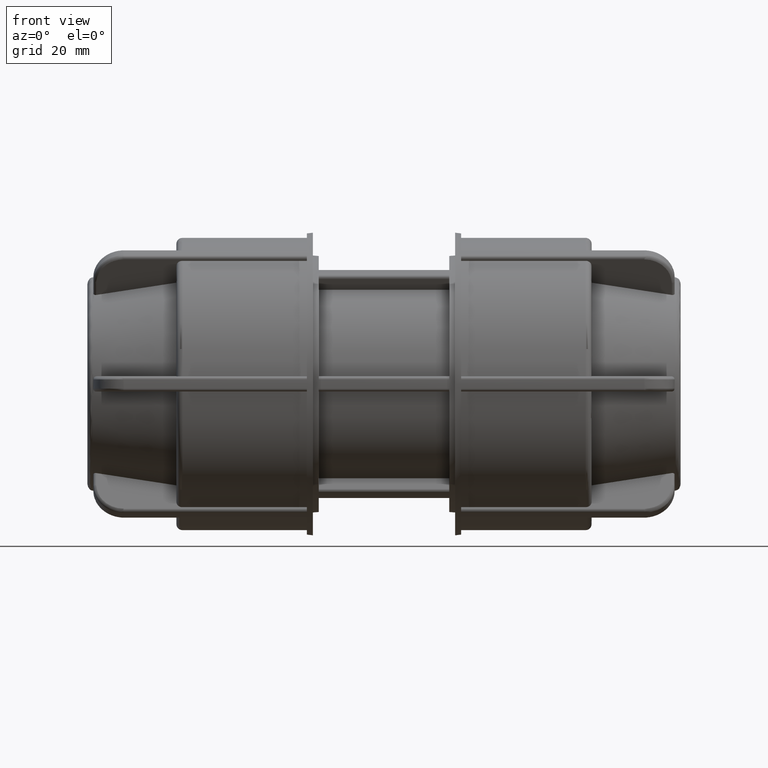
[diagram: clean part render]
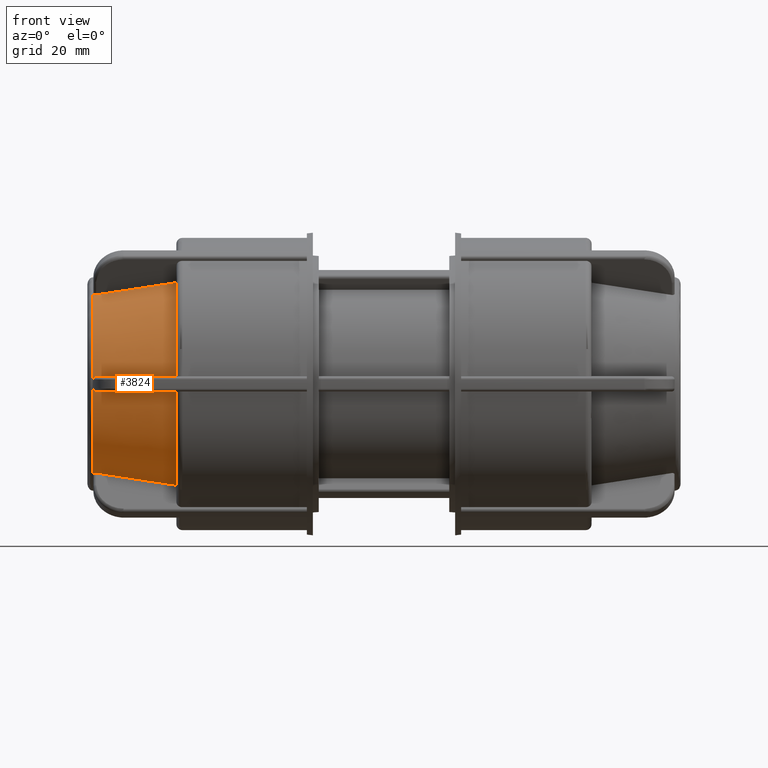
[diagram: same view with one face highlighted and labeled with its STEP entity id]
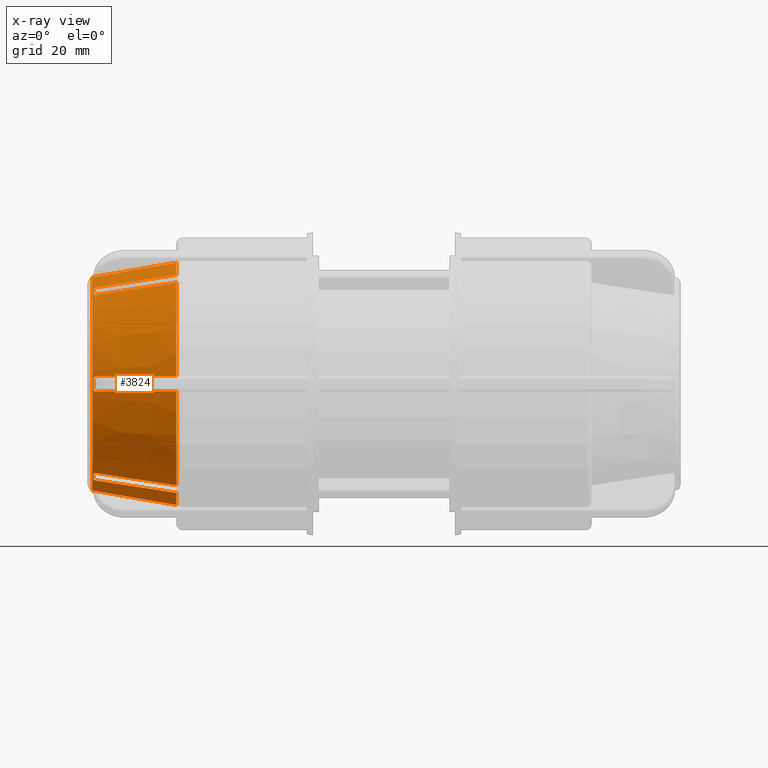
[diagram: x-ray of the same camera — body ghosted, the highlighted face saturated]
A machine part, front view. The second image highlights one B-rep face of the part: STEP entity #3824.
The next image is the same camera in x-ray: the body ghosted, the highlighted face saturated — about 0% of this face is hidden behind the body in this view.
In plain terms, the highlighted conical surface has half-angle 10 deg.
Its self-contained STEP definition (entity closure, byte-faithful):
#15=CONICAL_SURFACE('',#4187,18.7960033082072,10.);
#43=(
BOUNDED_CURVE()
B_SPLINE_CURVE(2,(#5802,#5803,#5804),.UNSPECIFIED.,.F.,.F.)
B_SPLINE_CURVE_WITH_KNOTS((3,3),(0.0540233314813296,1.39325814723339),
 .UNSPECIFIED.)
CURVE()
GEOMETRIC_REPRESENTATION_ITEM()
RATIONAL_B_SPLINE_CURVE((1.00015410123566,1.00198713033975,1.))
REPRESENTATION_ITEM('')
);
#44=(
BOUNDED_CURVE()
B_SPLINE_CURVE(2,(#6011,#6012,#6013),.UNSPECIFIED.,.F.,.F.)
B_SPLINE_CURVE_WITH_KNOTS((3,3),(0.054023332822121,1.39325814723339),
 .UNSPECIFIED.)
CURVE()
GEOMETRIC_REPRESENTATION_ITEM()
RATIONAL_B_SPLINE_CURVE((1.00015410150242,1.00198713373033,1.))
REPRESENTATION_ITEM('')
);
#45=(
BOUNDED_CURVE()
B_SPLINE_CURVE(2,(#6172,#6173,#6174),.UNSPECIFIED.,.F.,.F.)
B_SPLINE_CURVE_WITH_KNOTS((3,3),(0.0540233315500075,1.39325814723339),
 .UNSPECIFIED.)
CURVE()
GEOMETRIC_REPRESENTATION_ITEM()
RATIONAL_B_SPLINE_CURVE((1.00015410124615,1.00198713047243,1.))
REPRESENTATION_ITEM('')
);
#46=(
BOUNDED_CURVE()
B_SPLINE_CURVE(2,(#6333,#6334,#6335),.UNSPECIFIED.,.F.,.F.)
B_SPLINE_CURVE_WITH_KNOTS((3,3),(0.0540233327986817,1.39325814723339),
 .UNSPECIFIED.)
CURVE()
GEOMETRIC_REPRESENTATION_ITEM()
RATIONAL_B_SPLINE_CURVE((1.0001541014949,1.00198713363416,1.))
REPRESENTATION_ITEM('')
);
#47=(
BOUNDED_CURVE()
B_SPLINE_CURVE(2,(#6494,#6495,#6496),.UNSPECIFIED.,.F.,.F.)
B_SPLINE_CURVE_WITH_KNOTS((3,3),(0.0540233314578712,1.39325814723339),
 .UNSPECIFIED.)
CURVE()
GEOMETRIC_REPRESENTATION_ITEM()
RATIONAL_B_SPLINE_CURVE((1.00015410122812,1.00198713024338,1.))
REPRESENTATION_ITEM('')
);
#48=(
BOUNDED_CURVE()
B_SPLINE_CURVE(2,(#6571,#6572,#6573),.UNSPECIFIED.,.F.,.F.)
B_SPLINE_CURVE_WITH_KNOTS((3,3),(0.,1.33923481576427),.UNSPECIFIED.)
CURVE()
GEOMETRIC_REPRESENTATION_ITEM()
RATIONAL_B_SPLINE_CURVE((1.,1.00198713030067,1.00015410123259))
REPRESENTATION_ITEM('')
);
#49=(
BOUNDED_CURVE()
B_SPLINE_CURVE(2,(#6592,#6593,#6594),.UNSPECIFIED.,.F.,.F.)
B_SPLINE_CURVE_WITH_KNOTS((3,3),(0.,1.33923481580581),.UNSPECIFIED.)
CURVE()
GEOMETRIC_REPRESENTATION_ITEM()
RATIONAL_B_SPLINE_CURVE((1.,1.00198713016049,1.00015410122161))
REPRESENTATION_ITEM('')
);
#50=(
BOUNDED_CURVE()
B_SPLINE_CURVE(2,(#6613,#6614,#6615),.UNSPECIFIED.,.F.,.F.)
B_SPLINE_CURVE_WITH_KNOTS((3,3),(0.,1.33923481583448),.UNSPECIFIED.)
CURVE()
GEOMETRIC_REPRESENTATION_ITEM()
RATIONAL_B_SPLINE_CURVE((1.,1.00198713004817,1.00015410121281))
REPRESENTATION_ITEM('')
);
#51=(
BOUNDED_CURVE()
B_SPLINE_CURVE(2,(#6634,#6635,#6636),.UNSPECIFIED.,.F.,.F.)
B_SPLINE_CURVE_WITH_KNOTS((3,3),(0.,1.33923481467794),.UNSPECIFIED.)
CURVE()
GEOMETRIC_REPRESENTATION_ITEM()
RATIONAL_B_SPLINE_CURVE((1.,1.00198713304561,1.00015410144856))
REPRESENTATION_ITEM('')
);
#52=(
BOUNDED_CURVE()
B_SPLINE_CURVE(2,(#6655,#6656,#6657),.UNSPECIFIED.,.F.,.F.)
B_SPLINE_CURVE_WITH_KNOTS((3,3),(0.,1.33923481556404),.UNSPECIFIED.)
CURVE()
GEOMETRIC_REPRESENTATION_ITEM()
RATIONAL_B_SPLINE_CURVE((1.,1.0019871307598,1.00015410126877))
REPRESENTATION_ITEM('')
);
#53=(
BOUNDED_CURVE()
B_SPLINE_CURVE(2,(#6832,#6833,#6834),.UNSPECIFIED.,.F.,.F.)
B_SPLINE_CURVE_WITH_KNOTS((3,3),(0.0540233315486795,1.39325814723339),
 .UNSPECIFIED.)
CURVE()
GEOMETRIC_REPRESENTATION_ITEM()
RATIONAL_B_SPLINE_CURVE((1.00015410124742,1.00198713048896,1.))
REPRESENTATION_ITEM('')
);
#54=(
BOUNDED_CURVE()
B_SPLINE_CURVE(2,(#6906,#6907,#6908),.UNSPECIFIED.,.F.,.F.)
B_SPLINE_CURVE_WITH_KNOTS((3,3),(0.,1.33923481568245),.UNSPECIFIED.)
CURVE()
GEOMETRIC_REPRESENTATION_ITEM()
RATIONAL_B_SPLINE_CURVE((1.,1.00198713044212,1.0001541012438))
REPRESENTATION_ITEM('')
);
#69=B_SPLINE_CURVE_WITH_KNOTS('',3,(#5770,#5771,#5772,#5773,#5774,#5775,
#5776,#5777,#5778,#5779,#5780,#5781),.UNSPECIFIED.,.F.,.F.,(4,2,2,2,2,4),
(0.0761460251854452,0.0945144772238501,0.113255071626229,0.132253936853423,
0.151252802080618,0.151881477474885),.UNSPECIFIED.);
#73=B_SPLINE_CURVE_WITH_KNOTS('',3,(#5862,#5863,#5864,#5865,#5866,#5867,
#5868,#5869,#5870,#5871,#5872,#5873),.UNSPECIFIED.,.F.,.F.,(4,2,2,2,2,4),
(0.151952109715845,0.152580785110112,0.171579650337306,0.190578515564501,
0.20931910996688,0.227687562005285),.UNSPECIFIED.);
#76=B_SPLINE_CURVE_WITH_KNOTS('',3,(#5979,#5980,#5981,#5982,#5983,#5984,
#5985,#5986,#5987,#5988,#5989,#5990),.UNSPECIFIED.,.F.,.F.,(4,2,2,2,2,4),
(0.0761460251854459,0.0945144772238505,0.113255071626229,0.132253936853424,
0.151252802080619,0.151881477474897),.UNSPECIFIED.);
#80=B_SPLINE_CURVE_WITH_KNOTS('',3,(#6068,#6069,#6070,#6071,#6072,#6073,
#6074,#6075,#6076,#6077,#6078,#6079),.UNSPECIFIED.,.F.,.F.,(4,2,2,2,2,4),
(0.151952109715844,0.152580785110112,0.171579650337307,0.190578515564502,
0.20931910996688,0.227687562005285),.UNSPECIFIED.);
#83=B_SPLINE_CURVE_WITH_KNOTS('',3,(#6140,#6141,#6142,#6143,#6144,#6145,
#6146,#6147,#6148,#6149,#6150,#6151),.UNSPECIFIED.,.F.,.F.,(4,2,2,2,2,4),
(0.0761460251854453,0.09451447722385,0.113255071626229,0.132253936853423,
0.151252802080618,0.151881477474886),.UNSPECIFIED.);
#87=B_SPLINE_CURVE_WITH_KNOTS('',3,(#6229,#6230,#6231,#6232,#6233,#6234,
#6235,#6236,#6237,#6238,#6239,#6240),.UNSPECIFIED.,.F.,.F.,(4,2,2,2,2,4),
(0.151952109715835,0.152580785110112,0.171579650337307,0.190578515564502,
0.20931910996688,0.227687562005285),.UNSPECIFIED.);
#90=B_SPLINE_CURVE_WITH_KNOTS('',3,(#6301,#6302,#6303,#6304,#6305,#6306,
#6307,#6308,#6309,#6310,#6311,#6312),.UNSPECIFIED.,.F.,.F.,(4,2,2,2,2,4),
(0.0761460251854457,0.0945144772238506,0.113255071626229,0.132253936853424,
0.151252802080618,0.151881477474896),.UNSPECIFIED.);
#94=B_SPLINE_CURVE_WITH_KNOTS('',3,(#6390,#6391,#6392,#6393,#6394,#6395,
#6396,#6397,#6398,#6399,#6400,#6401),.UNSPECIFIED.,.F.,.F.,(4,2,2,2,2,4),
(0.151952109715844,0.152580785110111,0.171579650337306,0.1905785155645,
0.209319109966879,0.227687562005284),.UNSPECIFIED.);
#97=B_SPLINE_CURVE_WITH_KNOTS('',3,(#6462,#6463,#6464,#6465,#6466,#6467,
#6468,#6469,#6470,#6471,#6472,#6473),.UNSPECIFIED.,.F.,.F.,(4,2,2,2,2,4),
(0.0761460251854454,0.0945144772238501,0.113255071626229,0.132253936853424,
0.151252802080618,0.151881477474885),.UNSPECIFIED.);
#101=B_SPLINE_CURVE_WITH_KNOTS('',3,(#6551,#6552,#6553,#6554,#6555,#6556,
#6557,#6558,#6559,#6560,#6561,#6562),.UNSPECIFIED.,.F.,.F.,(4,2,2,2,2,4),
(0.151952109715844,0.152580785110112,0.171579650337306,0.190578515564501,
0.20931910996688,0.227687562005284),.UNSPECIFIED.);
#111=B_SPLINE_CURVE_WITH_KNOTS('',3,(#6817,#6818,#6819,#6820,#6821,#6822,
#6823,#6824,#6825,#6826,#6827,#6828),.UNSPECIFIED.,.F.,.F.,(4,2,2,2,2,4),
(0.0761460251854453,0.09451447722385,0.113255071626229,0.132253936853423,
0.151252802080618,0.151881477474886),.UNSPECIFIED.);
#114=B_SPLINE_CURVE_WITH_KNOTS('',3,(#6887,#6888,#6889,#6890,#6891,#6892,
#6893,#6894,#6895,#6896,#6897,#6898),.UNSPECIFIED.,.F.,.F.,(4,2,2,2,2,4),
(0.151952109715844,0.152580785110112,0.171579650337307,0.190578515564502,
0.20931910996688,0.227687562005285),.UNSPECIFIED.);
#203=FACE_BOUND('',#685,.T.);
#438=FACE_OUTER_BOUND('',#684,.T.);
#684=EDGE_LOOP('',(#3080,#3081,#3082,#3083,#3084,#3085,#3086,#3087,#3088,
#3089,#3090,#3091,#3092,#3093,#3094,#3095,#3096,#3097,#3098,#3099,#3100,
#3101,#3102,#3103,#3104,#3105,#3106,#3107,#3108,#3109,#3110,#3111,#3112,
#3113,#3114,#3115));
#685=EDGE_LOOP('',(#3116));
#1308=CIRCLE('',#4034,17.6728004410943);
#1329=CIRCLE('',#4063,17.6728004410943);
#1337=CIRCLE('',#4078,17.6728004410943);
#1345=CIRCLE('',#4093,17.6728004410943);
#1353=CIRCLE('',#4108,17.6728004410943);
#1356=CIRCLE('',#4118,20.0920066164144);
#1358=CIRCLE('',#4121,20.0920066164144);
#1360=CIRCLE('',#4124,20.0920066164144);
#1362=CIRCLE('',#4127,20.0920066164144);
#1363=CIRCLE('',#4129,20.0920066164144);
#1366=CIRCLE('',#4133,20.0920066164144);
#1386=CIRCLE('',#4180,17.6728004410943);
#1389=CIRCLE('',#4186,17.6457081218349);
#1567=VERTEX_POINT('',#5768);
#1568=VERTEX_POINT('',#5769);
#1572=VERTEX_POINT('',#5800);
#1579=VERTEX_POINT('',#5860);
#1580=VERTEX_POINT('',#5861);
#1606=VERTEX_POINT('',#5977);
#1607=VERTEX_POINT('',#5978);
#1611=VERTEX_POINT('',#6009);
#1616=VERTEX_POINT('',#6066);
#1617=VERTEX_POINT('',#6067);
#1622=VERTEX_POINT('',#6138);
#1623=VERTEX_POINT('',#6139);
#1627=VERTEX_POINT('',#6170);
#1632=VERTEX_POINT('',#6227);
#1633=VERTEX_POINT('',#6228);
#1638=VERTEX_POINT('',#6299);
#1639=VERTEX_POINT('',#6300);
#1643=VERTEX_POINT('',#6331);
#1648=VERTEX_POINT('',#6388);
#1649=VERTEX_POINT('',#6389);
#1654=VERTEX_POINT('',#6460);
#1655=VERTEX_POINT('',#6461);
#1659=VERTEX_POINT('',#6492);
#1664=VERTEX_POINT('',#6549);
#1665=VERTEX_POINT('',#6550);
#1666=VERTEX_POINT('',#6570);
#1670=VERTEX_POINT('',#6591);
#1674=VERTEX_POINT('',#6612);
#1678=VERTEX_POINT('',#6633);
#1682=VERTEX_POINT('',#6654);
#1687=VERTEX_POINT('',#6677);
#1688=VERTEX_POINT('',#6690);
#1700=VERTEX_POINT('',#6815);
#1701=VERTEX_POINT('',#6816);
#1705=VERTEX_POINT('',#6885);
#1706=VERTEX_POINT('',#6886);
#1708=VERTEX_POINT('',#6912);
#1981=EDGE_CURVE('',#1567,#1568,#69,.F.);
#1988=EDGE_CURVE('',#1567,#1572,#43,.T.);
#1996=EDGE_CURVE('',#1579,#1580,#73,.F.);
#1999=EDGE_CURVE('',#1579,#1568,#1308,.T.);
#2030=EDGE_CURVE('',#1606,#1607,#76,.F.);
#2037=EDGE_CURVE('',#1606,#1611,#44,.T.);
#2044=EDGE_CURVE('',#1616,#1617,#80,.F.);
#2047=EDGE_CURVE('',#1616,#1607,#1329,.T.);
#2055=EDGE_CURVE('',#1622,#1623,#83,.F.);
#2062=EDGE_CURVE('',#1622,#1627,#45,.T.);
#2069=EDGE_CURVE('',#1632,#1633,#87,.F.);
#2072=EDGE_CURVE('',#1632,#1623,#1337,.T.);
#2080=EDGE_CURVE('',#1638,#1639,#90,.F.);
#2087=EDGE_CURVE('',#1638,#1643,#46,.T.);
#2094=EDGE_CURVE('',#1648,#1649,#94,.F.);
#2097=EDGE_CURVE('',#1648,#1639,#1345,.T.);
#2105=EDGE_CURVE('',#1654,#1655,#97,.F.);
#2112=EDGE_CURVE('',#1654,#1659,#47,.T.);
#2119=EDGE_CURVE('',#1664,#1665,#101,.F.);
#2122=EDGE_CURVE('',#1664,#1655,#1353,.T.);
#2124=EDGE_CURVE('',#1666,#1665,#48,.T.);
#2129=EDGE_CURVE('',#1670,#1580,#49,.T.);
#2134=EDGE_CURVE('',#1674,#1617,#50,.T.);
#2139=EDGE_CURVE('',#1678,#1633,#51,.T.);
#2144=EDGE_CURVE('',#1682,#1649,#52,.T.);
#2151=EDGE_CURVE('',#1687,#1659,#1356,.T.);
#2153=EDGE_CURVE('',#1666,#1643,#1358,.T.);
#2155=EDGE_CURVE('',#1682,#1627,#1360,.T.);
#2157=EDGE_CURVE('',#1678,#1611,#1362,.T.);
#2158=EDGE_CURVE('',#1670,#1688,#1363,.T.);
#2162=EDGE_CURVE('',#1674,#1572,#1366,.T.);
#2189=EDGE_CURVE('',#1700,#1701,#111,.F.);
#2192=EDGE_CURVE('',#1700,#1688,#53,.T.);
#2198=EDGE_CURVE('',#1705,#1706,#114,.F.);
#2201=EDGE_CURVE('',#1705,#1701,#1386,.T.);
#2203=EDGE_CURVE('',#1687,#1706,#54,.T.);
#2205=EDGE_CURVE('',#1708,#1708,#1389,.T.);
#3080=ORIENTED_EDGE('',*,*,#1988,.T.);
#3081=ORIENTED_EDGE('',*,*,#2162,.F.);
#3082=ORIENTED_EDGE('',*,*,#2134,.T.);
#3083=ORIENTED_EDGE('',*,*,#2044,.F.);
#3084=ORIENTED_EDGE('',*,*,#2047,.T.);
#3085=ORIENTED_EDGE('',*,*,#2030,.F.);
#3086=ORIENTED_EDGE('',*,*,#2037,.T.);
#3087=ORIENTED_EDGE('',*,*,#2157,.F.);
#3088=ORIENTED_EDGE('',*,*,#2139,.T.);
#3089=ORIENTED_EDGE('',*,*,#2069,.F.);
#3090=ORIENTED_EDGE('',*,*,#2072,.T.);
#3091=ORIENTED_EDGE('',*,*,#2055,.F.);
#3092=ORIENTED_EDGE('',*,*,#2062,.T.);
#3093=ORIENTED_EDGE('',*,*,#2155,.F.);
#3094=ORIENTED_EDGE('',*,*,#2144,.T.);
#3095=ORIENTED_EDGE('',*,*,#2094,.F.);
#3096=ORIENTED_EDGE('',*,*,#2097,.T.);
#3097=ORIENTED_EDGE('',*,*,#2080,.F.);
#3098=ORIENTED_EDGE('',*,*,#2087,.T.);
#3099=ORIENTED_EDGE('',*,*,#2153,.F.);
#3100=ORIENTED_EDGE('',*,*,#2124,.T.);
#3101=ORIENTED_EDGE('',*,*,#2119,.F.);
#3102=ORIENTED_EDGE('',*,*,#2122,.T.);
#3103=ORIENTED_EDGE('',*,*,#2105,.F.);
#3104=ORIENTED_EDGE('',*,*,#2112,.T.);
#3105=ORIENTED_EDGE('',*,*,#2151,.F.);
#3106=ORIENTED_EDGE('',*,*,#2203,.T.);
#3107=ORIENTED_EDGE('',*,*,#2198,.F.);
#3108=ORIENTED_EDGE('',*,*,#2201,.T.);
#3109=ORIENTED_EDGE('',*,*,#2189,.F.);
#3110=ORIENTED_EDGE('',*,*,#2192,.T.);
#3111=ORIENTED_EDGE('',*,*,#2158,.F.);
#3112=ORIENTED_EDGE('',*,*,#2129,.T.);
#3113=ORIENTED_EDGE('',*,*,#1996,.F.);
#3114=ORIENTED_EDGE('',*,*,#1999,.T.);
#3115=ORIENTED_EDGE('',*,*,#1981,.F.);
#3116=ORIENTED_EDGE('',*,*,#2205,.F.);
#3824=ADVANCED_FACE('',(#438,#203),#15,.T.);
#4034=AXIS2_PLACEMENT_3D('',#5877,#4658,#4659);
#4063=AXIS2_PLACEMENT_3D('',#6083,#4735,#4736);
#4078=AXIS2_PLACEMENT_3D('',#6244,#4774,#4775);
#4093=AXIS2_PLACEMENT_3D('',#6405,#4813,#4814);
#4108=AXIS2_PLACEMENT_3D('',#6566,#4852,#4853);
#4118=AXIS2_PLACEMENT_3D('',#6679,#4888,#4889);
#4121=AXIS2_PLACEMENT_3D('',#6682,#4894,#4895);
#4124=AXIS2_PLACEMENT_3D('',#6685,#4900,#4901);
#4127=AXIS2_PLACEMENT_3D('',#6688,#4906,#4907);
#4129=AXIS2_PLACEMENT_3D('',#6691,#4910,#4911);
#4133=AXIS2_PLACEMENT_3D('',#6697,#4919,#4920);
#4180=AXIS2_PLACEMENT_3D('',#6902,#5023,#5024);
#4186=AXIS2_PLACEMENT_3D('',#6913,#5035,#5036);
#4187=AXIS2_PLACEMENT_3D('',#6914,#5037,#5038);
#4658=DIRECTION('center_axis',(-1.,-1.7943457982662E-16,2.19497810467973E-16));
#4659=DIRECTION('ref_axis',(-5.27074598664029E-17,1.,0.));
#4735=DIRECTION('center_axis',(-1.,7.40196600938148E-17,2.19497810467973E-16));
#4736=DIRECTION('ref_axis',(-5.27074598664029E-17,1.,0.));
#4774=DIRECTION('center_axis',(-1.,2.00746780054032E-16,-1.4791141972894E-31));
#4775=DIRECTION('ref_axis',(-5.27074598664029E-17,1.,0.));
#4813=DIRECTION('center_axis',(-1.,7.40196600938147E-17,-2.19497810467973E-16));
#4814=DIRECTION('ref_axis',(-5.27074598664029E-17,1.,0.));
#4852=DIRECTION('center_axis',(-1.,-1.79434579826621E-16,-2.19497810467973E-16));
#4853=DIRECTION('ref_axis',(-5.27074598664029E-17,1.,0.));
#4888=DIRECTION('center_axis',(1.,3.06161699786838E-16,0.));
#4889=DIRECTION('ref_axis',(0.,0.,-1.));
#4894=DIRECTION('center_axis',(1.,3.06161699786838E-16,0.));
#4895=DIRECTION('ref_axis',(0.,0.,-1.));
#4900=DIRECTION('center_axis',(1.,3.06161699786838E-16,0.));
#4901=DIRECTION('ref_axis',(0.,0.,-1.));
#4906=DIRECTION('center_axis',(1.,3.06161699786838E-16,0.));
#4907=DIRECTION('ref_axis',(0.,0.,-1.));
#4910=DIRECTION('center_axis',(1.,3.06161699786838E-16,0.));
#4911=DIRECTION('ref_axis',(0.,0.,-1.));
#4919=DIRECTION('center_axis',(1.,3.06161699786838E-16,0.));
#4920=DIRECTION('ref_axis',(0.,0.,-1.));
#5023=DIRECTION('center_axis',(-1.,-3.06161699786838E-16,0.));
#5024=DIRECTION('ref_axis',(-5.27074598664029E-17,1.,0.));
#5035=DIRECTION('center_axis',(-1.,-5.03339629992568E-16,2.66200764082701E-32));
#5036=DIRECTION('ref_axis',(5.03339629992568E-16,-1.,3.06161699786838E-17));
#5037=DIRECTION('center_axis',(1.,3.06161699786838E-16,0.));
#5038=DIRECTION('ref_axis',(-5.27074598664029E-17,1.,0.));
#5768=CARTESIAN_POINT('',(-47.52,7.77592945157103,-15.9683048861923));
#5769=CARTESIAN_POINT('',(-48.02,8.1789204388094,-15.6663057510815));
#5770=CARTESIAN_POINT('Ctrl Pts',(-48.02,8.1789204388094,-15.6663057510815));
#5771=CARTESIAN_POINT('Ctrl Pts',(-48.02,8.12450236308849,-15.6947158382345));
#5772=CARTESIAN_POINT('Ctrl Pts',(-48.0080460852219,8.06744823452855,-15.7264832756318));
#5773=CARTESIAN_POINT('Ctrl Pts',(-47.9589694054206,7.96309200606991,-15.7892775950758));
#5774=CARTESIAN_POINT('Ctrl Pts',(-47.9213143433133,7.91602198748322,-15.8202962165603));
#5775=CARTESIAN_POINT('Ctrl Pts',(-47.8337192393451,7.8432441673508,-15.8737347183183));
#5776=CARTESIAN_POINT('Ctrl Pts',(-47.777761870359,7.81295494224818,-15.8996165545276));
#5777=CARTESIAN_POINT('Ctrl Pts',(-47.6551849267657,7.77663340102511,-15.9414649404214));
#5778=CARTESIAN_POINT('Ctrl Pts',(-47.5885720097734,7.77060117018284,-15.9574510622028));
#5779=CARTESIAN_POINT('Ctrl Pts',(-47.5241408291848,7.77557508910171,-15.9676653385499));
#5780=CARTESIAN_POINT('Ctrl Pts',(-47.5220725247047,7.77574627634334,-15.9679876173912));
#5781=CARTESIAN_POINT('Ctrl Pts',(-47.5200000000001,7.77592945157121,-15.9683048861926));
#5800=CARTESIAN_POINT('',(-34.3,8.94401089308728,-17.9914812902767));
#5802=CARTESIAN_POINT('Ctrl Pts',(-47.5200000000007,7.77592945157097,-15.9683048861922));
#5803=CARTESIAN_POINT('Ctrl Pts',(-41.318843780615,8.32400407815606,-16.9175979857769));
#5804=CARTESIAN_POINT('Ctrl Pts',(-34.3,8.94401089308728,-17.9914812902767));
#5860=CARTESIAN_POINT('',(-48.02,9.47795854448606,-14.9163057510815));
#5861=CARTESIAN_POINT('',(-47.52,9.94099296103211,-14.7183048861923));
#5862=CARTESIAN_POINT('Ctrl Pts',(-47.5200000000001,9.94099296103231,-14.7183048861926));
#5863=CARTESIAN_POINT('Ctrl Pts',(-47.5220725247047,9.94080978580444,-14.7179876173912));
#5864=CARTESIAN_POINT('Ctrl Pts',(-47.5241408291848,9.94061627776153,-14.7176782254705));
#5865=CARTESIAN_POINT('Ctrl Pts',(-47.5885720097734,9.93425741442311,-14.7082635471568));
#5866=CARTESIAN_POINT('Ctrl Pts',(-47.6551849267658,9.91739691143129,-14.705494551417));
#5867=CARTESIAN_POINT('Ctrl Pts',(-47.777761870359,9.86299437552835,-14.7160257358739));
#5868=CARTESIAN_POINT('Ctrl Pts',(-47.8337192393451,9.82543543532326,-14.7293160561691));
#5869=CARTESIAN_POINT('Ctrl Pts',(-47.9213143433133,9.74276742519437,-14.7656242463568));
#5870=CARTESIAN_POINT('Ctrl Pts',(-47.9589694054206,9.69236950170515,-14.7908787674673));
#5871=CARTESIAN_POINT('Ctrl Pts',(-48.0080460852219,9.58580991162394,-14.8498567526336));
#5872=CARTESIAN_POINT('Ctrl Pts',(-48.02,9.52977143954478,-14.8833833586586));
#5873=CARTESIAN_POINT('Ctrl Pts',(-48.02,9.47795854448606,-14.9163057510815));
#5877=CARTESIAN_POINT('Origin',(-48.02,-1.4701884823764E-14,0.));
#5977=CARTESIAN_POINT('',(-47.52,-9.9409929610325,-14.7183048861928));
#5978=CARTESIAN_POINT('',(-48.02,-9.47795854448611,-14.9163057510815));
#5979=CARTESIAN_POINT('Ctrl Pts',(-48.02,-9.47795854448611,-14.9163057510815));
#5980=CARTESIAN_POINT('Ctrl Pts',(-48.02,-9.52977143954483,-14.8833833586586));
#5981=CARTESIAN_POINT('Ctrl Pts',(-48.0080460852219,-9.58580991162399,-14.8498567526336));
#5982=CARTESIAN_POINT('Ctrl Pts',(-47.9589694054206,-9.6923695017052,-14.7908787674673));
#5983=CARTESIAN_POINT('Ctrl Pts',(-47.9213143433133,-9.74276742519442,-14.7656242463568));
#5984=CARTESIAN_POINT('Ctrl Pts',(-47.8337192393451,-9.82543543532331,-14.7293160561691));
#5985=CARTESIAN_POINT('Ctrl Pts',(-47.777761870359,-9.86299437552839,-14.7160257358739));
#5986=CARTESIAN_POINT('Ctrl Pts',(-47.6551849267658,-9.91739691143134,-14.705494551417));
#5987=CARTESIAN_POINT('Ctrl Pts',(-47.5885720097734,-9.93425741442316,-14.7082635471568));
#5988=CARTESIAN_POINT('Ctrl Pts',(-47.5241408291848,-9.94061627776158,-14.7176782254705));
#5989=CARTESIAN_POINT('Ctrl Pts',(-47.5220725247046,-9.94080978580449,-14.7179876173912));
#5990=CARTESIAN_POINT('Ctrl Pts',(-47.52,-9.94099296103237,-14.7183048861926));
#6009=CARTESIAN_POINT('',(-34.3,-11.1090744025484,-16.7414812902767));
#6011=CARTESIAN_POINT('Ctrl Pts',(-47.5200000000007,-9.94099296103244,-14.7183048861927));
#6012=CARTESIAN_POINT('Ctrl Pts',(-41.3188439547113,-10.489067572234,-15.6675979591323));
#6013=CARTESIAN_POINT('Ctrl Pts',(-34.3,-11.1090744025484,-16.7414812902767));
#6066=CARTESIAN_POINT('',(-48.02,-8.17892043880945,-15.6663057510815));
#6067=CARTESIAN_POINT('',(-47.52,-7.77592945157106,-15.9683048861922));
#6068=CARTESIAN_POINT('Ctrl Pts',(-47.5200000000001,-7.77592945157127,-15.9683048861926));
#6069=CARTESIAN_POINT('Ctrl Pts',(-47.5220725247047,-7.77574627634339,-15.9679876173912));
#6070=CARTESIAN_POINT('Ctrl Pts',(-47.5241408291848,-7.77557508910176,-15.9676653385498));
#6071=CARTESIAN_POINT('Ctrl Pts',(-47.5885720097734,-7.77060117018289,-15.9574510622028));
#6072=CARTESIAN_POINT('Ctrl Pts',(-47.6551849267658,-7.77663340102516,-15.9414649404214));
#6073=CARTESIAN_POINT('Ctrl Pts',(-47.777761870359,-7.81295494224823,-15.8996165545276));
#6074=CARTESIAN_POINT('Ctrl Pts',(-47.8337192393451,-7.84324416735085,-15.8737347183183));
#6075=CARTESIAN_POINT('Ctrl Pts',(-47.9213143433133,-7.91602198748327,-15.8202962165602));
#6076=CARTESIAN_POINT('Ctrl Pts',(-47.9589694054206,-7.96309200606997,-15.7892775950758));
#6077=CARTESIAN_POINT('Ctrl Pts',(-48.0080460852219,-8.06744823452861,-15.7264832756318));
#6078=CARTESIAN_POINT('Ctrl Pts',(-48.02,-8.12450236308854,-15.6947158382345));
#6079=CARTESIAN_POINT('Ctrl Pts',(-48.02,-8.17892043880945,-15.6663057510815));
#6083=CARTESIAN_POINT('Origin',(-48.02,-1.4701884823764E-14,0.));
#6138=CARTESIAN_POINT('',(-47.52,-17.7169224126033,1.25000000000001));
#6139=CARTESIAN_POINT('',(-48.02,-17.6568789832955,0.750000000000006));
#6140=CARTESIAN_POINT('Ctrl Pts',(-48.02,-17.6568789832955,0.750000000000006));
#6141=CARTESIAN_POINT('Ctrl Pts',(-48.02,-17.6542738026333,0.811332479575897));
#6142=CARTESIAN_POINT('Ctrl Pts',(-48.0080460852219,-17.6532581461526,0.876626522998237));
#6143=CARTESIAN_POINT('Ctrl Pts',(-47.9589694054206,-17.6554615077751,0.998398827608572));
#6144=CARTESIAN_POINT('Ctrl Pts',(-47.9213143433133,-17.6587894126777,1.05467197020346));
#6145=CARTESIAN_POINT('Ctrl Pts',(-47.8337192393451,-17.6686796026741,1.14441866214923));
#6146=CARTESIAN_POINT('Ctrl Pts',(-47.777761870359,-17.6759493177766,1.18359081865366));
#6147=CARTESIAN_POINT('Ctrl Pts',(-47.6551849267658,-17.6940303124565,1.23597038900434));
#6148=CARTESIAN_POINT('Ctrl Pts',(-47.5885720097734,-17.704858584606,1.24918751504594));
#6149=CARTESIAN_POINT('Ctrl Pts',(-47.5241408291848,-17.7161913668633,1.24998711307938));
#6150=CARTESIAN_POINT('Ctrl Pts',(-47.5220725247047,-17.7165560621478,1.25000000000001));
#6151=CARTESIAN_POINT('Ctrl Pts',(-47.5200000000001,-17.7169224126036,1.25000000000001));
#6170=CARTESIAN_POINT('',(-34.3,-20.0530852956357,1.25000000000001));
#6172=CARTESIAN_POINT('Ctrl Pts',(-47.5200000000006,-17.7169224126031,1.25000000000001));
#6173=CARTESIAN_POINT('Ctrl Pts',(-41.3188437892787,-18.8130716642422,1.25000000000001));
#6174=CARTESIAN_POINT('Ctrl Pts',(-34.3,-20.0530852956357,1.25000000000001));
#6227=CARTESIAN_POINT('',(-48.02,-17.6568789832955,-0.749999999999998));
#6228=CARTESIAN_POINT('',(-47.52,-17.7169224126037,-1.25));
#6229=CARTESIAN_POINT('Ctrl Pts',(-47.52,-17.7169224126036,-1.25));
#6230=CARTESIAN_POINT('Ctrl Pts',(-47.5220725247046,-17.7165560621479,-1.25));
#6231=CARTESIAN_POINT('Ctrl Pts',(-47.5241408291848,-17.7161913668633,-1.24998711307937));
#6232=CARTESIAN_POINT('Ctrl Pts',(-47.5885720097734,-17.704858584606,-1.24918751504593));
#6233=CARTESIAN_POINT('Ctrl Pts',(-47.6551849267658,-17.6940303124565,-1.23597038900433));
#6234=CARTESIAN_POINT('Ctrl Pts',(-47.777761870359,-17.6759493177766,-1.18359081865365));
#6235=CARTESIAN_POINT('Ctrl Pts',(-47.8337192393451,-17.6686796026741,-1.14441866214922));
#6236=CARTESIAN_POINT('Ctrl Pts',(-47.9213143433133,-17.6587894126777,-1.05467197020345));
#6237=CARTESIAN_POINT('Ctrl Pts',(-47.9589694054206,-17.6554615077751,-0.998398827608559));
#6238=CARTESIAN_POINT('Ctrl Pts',(-48.0080460852218,-17.6532581461526,-0.876626522998224));
#6239=CARTESIAN_POINT('Ctrl Pts',(-48.02,-17.6542738026333,-0.811332479575889));
#6240=CARTESIAN_POINT('Ctrl Pts',(-48.02,-17.6568789832955,-0.749999999999998));
#6244=CARTESIAN_POINT('Origin',(-48.02,-1.4701884823764E-14,0.));
#6299=CARTESIAN_POINT('',(-47.52,-7.77592945157138,15.9683048861928));
#6300=CARTESIAN_POINT('',(-48.02,-8.17892043880944,15.6663057510815));
#6301=CARTESIAN_POINT('Ctrl Pts',(-48.02,-8.17892043880943,15.6663057510815));
#6302=CARTESIAN_POINT('Ctrl Pts',(-48.02,-8.12450236308853,15.6947158382345));
#6303=CARTESIAN_POINT('Ctrl Pts',(-48.0080460852219,-8.06744823452859,15.7264832756318));
#6304=CARTESIAN_POINT('Ctrl Pts',(-47.9589694054207,-7.96309200606995,15.7892775950758));
#6305=CARTESIAN_POINT('Ctrl Pts',(-47.9213143433133,-7.91602198748325,15.8202962165603));
#6306=CARTESIAN_POINT('Ctrl Pts',(-47.8337192393451,-7.84324416735083,15.8737347183183));
#6307=CARTESIAN_POINT('Ctrl Pts',(-47.777761870359,-7.81295494224821,15.8996165545276));
#6308=CARTESIAN_POINT('Ctrl Pts',(-47.6551849267658,-7.77663340102515,15.9414649404214));
#6309=CARTESIAN_POINT('Ctrl Pts',(-47.5885720097734,-7.77060117018287,15.9574510622028));
#6310=CARTESIAN_POINT('Ctrl Pts',(-47.5241408291848,-7.77557508910174,15.9676653385499));
#6311=CARTESIAN_POINT('Ctrl Pts',(-47.5220725247046,-7.77574627634338,15.9679876173912));
#6312=CARTESIAN_POINT('Ctrl Pts',(-47.52,-7.77592945157126,15.9683048861926));
#6331=CARTESIAN_POINT('',(-34.3,-8.94401089308732,17.9914812902767));
#6333=CARTESIAN_POINT('Ctrl Pts',(-47.5200000000007,-7.77592945157133,15.9683048861927));
#6334=CARTESIAN_POINT('Ctrl Pts',(-41.3188439514396,-8.32400406306194,16.917597959633));
#6335=CARTESIAN_POINT('Ctrl Pts',(-34.3,-8.94401089308732,17.9914812902767));
#6388=CARTESIAN_POINT('',(-48.02,-9.4779585444861,14.9163057510815));
#6389=CARTESIAN_POINT('',(-47.52,-9.94099296103221,14.7183048861923));
#6390=CARTESIAN_POINT('Ctrl Pts',(-47.5200000000001,-9.94099296103235,14.7183048861926));
#6391=CARTESIAN_POINT('Ctrl Pts',(-47.5220725247047,-9.94080978580447,14.7179876173912));
#6392=CARTESIAN_POINT('Ctrl Pts',(-47.5241408291848,-9.94061627776156,14.7176782254705));
#6393=CARTESIAN_POINT('Ctrl Pts',(-47.5885720097734,-9.93425741442314,14.7082635471568));
#6394=CARTESIAN_POINT('Ctrl Pts',(-47.6551849267658,-9.91739691143133,14.705494551417));
#6395=CARTESIAN_POINT('Ctrl Pts',(-47.777761870359,-9.86299437552839,14.7160257358739));
#6396=CARTESIAN_POINT('Ctrl Pts',(-47.8337192393451,-9.82543543532329,14.7293160561691));
#6397=CARTESIAN_POINT('Ctrl Pts',(-47.9213143433133,-9.7427674251944,14.7656242463568));
#6398=CARTESIAN_POINT('Ctrl Pts',(-47.9589694054207,-9.69236950170519,14.7908787674673));
#6399=CARTESIAN_POINT('Ctrl Pts',(-48.0080460852219,-9.58580991162398,14.8498567526336));
#6400=CARTESIAN_POINT('Ctrl Pts',(-48.02,-9.52977143954481,14.8833833586586));
#6401=CARTESIAN_POINT('Ctrl Pts',(-48.02,-9.47795854448609,14.9163057510815));
#6405=CARTESIAN_POINT('Origin',(-48.02,-1.4701884823764E-14,0.));
#6460=CARTESIAN_POINT('',(-47.52,9.94099296103214,14.7183048861923));
#6461=CARTESIAN_POINT('',(-48.02,9.47795854448608,14.9163057510815));
#6462=CARTESIAN_POINT('Ctrl Pts',(-48.02,9.47795854448608,14.9163057510815));
#6463=CARTESIAN_POINT('Ctrl Pts',(-48.02,9.52977143954479,14.8833833586586));
#6464=CARTESIAN_POINT('Ctrl Pts',(-48.0080460852218,9.58580991162395,14.8498567526336));
#6465=CARTESIAN_POINT('Ctrl Pts',(-47.9589694054206,9.69236950170517,14.7908787674673));
#6466=CARTESIAN_POINT('Ctrl Pts',(-47.9213143433133,9.74276742519439,14.7656242463568));
#6467=CARTESIAN_POINT('Ctrl Pts',(-47.8337192393451,9.82543543532328,14.7293160561691));
#6468=CARTESIAN_POINT('Ctrl Pts',(-47.777761870359,9.86299437552837,14.7160257358739));
#6469=CARTESIAN_POINT('Ctrl Pts',(-47.6551849267658,9.91739691143131,14.705494551417));
#6470=CARTESIAN_POINT('Ctrl Pts',(-47.5885720097734,9.93425741442312,14.7082635471568));
#6471=CARTESIAN_POINT('Ctrl Pts',(-47.5241408291848,9.94061627776154,14.7176782254705));
#6472=CARTESIAN_POINT('Ctrl Pts',(-47.5220725247047,9.94080978580445,14.7179876173912));
#6473=CARTESIAN_POINT('Ctrl Pts',(-47.5200000000001,9.94099296103233,14.7183048861926));
#6492=CARTESIAN_POINT('',(-34.3,11.1090744025484,16.7414812902767));
#6494=CARTESIAN_POINT('Ctrl Pts',(-47.5200000000007,9.94099296103209,14.7183048861922));
#6495=CARTESIAN_POINT('Ctrl Pts',(-41.3188437773395,10.4890675879066,15.6675979862782));
#6496=CARTESIAN_POINT('Ctrl Pts',(-34.3,11.1090744025484,16.7414812902767));
#6549=CARTESIAN_POINT('',(-48.02,8.17892043880942,15.6663057510815));
#6550=CARTESIAN_POINT('',(-47.52,7.77592945157104,15.9683048861923));
#6551=CARTESIAN_POINT('Ctrl Pts',(-47.5200000000001,7.77592945157123,15.9683048861926));
#6552=CARTESIAN_POINT('Ctrl Pts',(-47.5220725247047,7.77574627634336,15.9679876173912));
#6553=CARTESIAN_POINT('Ctrl Pts',(-47.5241408291848,7.77557508910173,15.9676653385498));
#6554=CARTESIAN_POINT('Ctrl Pts',(-47.5885720097734,7.77060117018285,15.9574510622028));
#6555=CARTESIAN_POINT('Ctrl Pts',(-47.6551849267658,7.77663340102513,15.9414649404214));
#6556=CARTESIAN_POINT('Ctrl Pts',(-47.777761870359,7.8129549422482,15.8996165545276));
#6557=CARTESIAN_POINT('Ctrl Pts',(-47.8337192393451,7.84324416735082,15.8737347183183));
#6558=CARTESIAN_POINT('Ctrl Pts',(-47.9213143433133,7.91602198748324,15.8202962165603));
#6559=CARTESIAN_POINT('Ctrl Pts',(-47.9589694054207,7.96309200606993,15.7892775950758));
#6560=CARTESIAN_POINT('Ctrl Pts',(-48.0080460852219,8.06744823452858,15.7264832756318));
#6561=CARTESIAN_POINT('Ctrl Pts',(-48.02,8.12450236308851,15.6947158382345));
#6562=CARTESIAN_POINT('Ctrl Pts',(-48.02,8.17892043880942,15.6663057510815));
#6566=CARTESIAN_POINT('Origin',(-48.02,-1.4701884823764E-14,0.));
#6570=CARTESIAN_POINT('',(-34.3,8.9440108930873,17.9914812902767));
#6571=CARTESIAN_POINT('Ctrl Pts',(-34.3,8.94401089308731,17.9914812902767));
#6572=CARTESIAN_POINT('Ctrl Pts',(-41.318843778979,8.32400407830065,16.9175979860273));
#6573=CARTESIAN_POINT('Ctrl Pts',(-47.5200000000007,7.77592945157099,15.9683048861922));
#6591=CARTESIAN_POINT('',(-34.3,11.1090744025484,-16.7414812902767));
#6592=CARTESIAN_POINT('Ctrl Pts',(-34.3,11.1090744025484,-16.7414812902767));
#6593=CARTESIAN_POINT('Ctrl Pts',(-41.3188437733671,10.4890675882576,-15.6675979868862));
#6594=CARTESIAN_POINT('Ctrl Pts',(-47.5200000000006,9.94099296103206,-14.7183048861922));
#6612=CARTESIAN_POINT('',(-34.3,-8.94401089308733,-17.9914812902767));
#6613=CARTESIAN_POINT('Ctrl Pts',(-34.3,-8.94401089308733,-17.9914812902767));
#6614=CARTESIAN_POINT('Ctrl Pts',(-41.3188437693977,-8.32400407914728,-16.9175979874936));
#6615=CARTESIAN_POINT('Ctrl Pts',(-47.5200000000006,-7.775929451571,-15.9683048861921));
#6633=CARTESIAN_POINT('',(-34.3,-20.0530852956357,-1.25));
#6634=CARTESIAN_POINT('Ctrl Pts',(-34.3,-20.0530852956357,-1.25));
#6635=CARTESIAN_POINT('Ctrl Pts',(-41.3188439200203,-18.8130716411374,-1.25));
#6636=CARTESIAN_POINT('Ctrl Pts',(-47.5200000000006,-17.7169224126036,-1.25));
#6654=CARTESIAN_POINT('',(-34.3,-11.1090744025484,16.7414812902767));
#6655=CARTESIAN_POINT('Ctrl Pts',(-34.3,-11.1090744025484,16.7414812902767));
#6656=CARTESIAN_POINT('Ctrl Pts',(-41.3188438046856,-10.4890675854903,15.667597982093));
#6657=CARTESIAN_POINT('Ctrl Pts',(-47.5200000000006,-9.94099296103215,14.7183048861922));
#6677=CARTESIAN_POINT('',(-34.3,20.0530852956357,1.25));
#6679=CARTESIAN_POINT('Origin',(-34.3,-1.05013463026886E-14,0.));
#6682=CARTESIAN_POINT('Origin',(-34.3,-1.05013463026886E-14,0.));
#6685=CARTESIAN_POINT('Origin',(-34.3,-1.05013463026886E-14,0.));
#6688=CARTESIAN_POINT('Origin',(-34.3,-1.05013463026886E-14,0.));
#6690=CARTESIAN_POINT('',(-34.3,20.0530852956357,-1.25));
#6691=CARTESIAN_POINT('Origin',(-34.3,-1.05013463026886E-14,0.));
#6697=CARTESIAN_POINT('Origin',(-34.3,-1.05013463026886E-14,0.));
#6815=CARTESIAN_POINT('',(-47.52,17.7169224126032,-1.25));
#6816=CARTESIAN_POINT('',(-48.02,17.6568789832955,-0.750000000000002));
#6817=CARTESIAN_POINT('Ctrl Pts',(-48.02,17.6568789832955,-0.750000000000002));
#6818=CARTESIAN_POINT('Ctrl Pts',(-48.02,17.6542738026333,-0.811332479575893));
#6819=CARTESIAN_POINT('Ctrl Pts',(-48.0080460852218,17.6532581461525,-0.876626522998232));
#6820=CARTESIAN_POINT('Ctrl Pts',(-47.9589694054206,17.6554615077751,-0.998398827608567));
#6821=CARTESIAN_POINT('Ctrl Pts',(-47.9213143433133,17.6587894126776,-1.05467197020346));
#6822=CARTESIAN_POINT('Ctrl Pts',(-47.8337192393451,17.6686796026741,-1.14441866214923));
#6823=CARTESIAN_POINT('Ctrl Pts',(-47.777761870359,17.6759493177766,-1.18359081865366));
#6824=CARTESIAN_POINT('Ctrl Pts',(-47.6551849267658,17.6940303124564,-1.23597038900434));
#6825=CARTESIAN_POINT('Ctrl Pts',(-47.5885720097734,17.704858584606,-1.24918751504594));
#6826=CARTESIAN_POINT('Ctrl Pts',(-47.5241408291848,17.7161913668633,-1.24998711307937));
#6827=CARTESIAN_POINT('Ctrl Pts',(-47.5220725247047,17.7165560621478,-1.25));
#6828=CARTESIAN_POINT('Ctrl Pts',(-47.5200000000001,17.7169224126036,-1.25));
#6832=CARTESIAN_POINT('Ctrl Pts',(-47.5200000000006,17.7169224126031,-1.25));
#6833=CARTESIAN_POINT('Ctrl Pts',(-41.3188437892295,18.8130716642509,-1.25));
#6834=CARTESIAN_POINT('Ctrl Pts',(-34.3,20.0530852956357,-1.25));
#6885=CARTESIAN_POINT('',(-48.02,17.6568789832955,0.749999999999999));
#6886=CARTESIAN_POINT('',(-47.52,17.7169224126032,1.25));
#6887=CARTESIAN_POINT('Ctrl Pts',(-47.5200000000001,17.7169224126036,1.25));
#6888=CARTESIAN_POINT('Ctrl Pts',(-47.5220725247047,17.7165560621478,1.25));
#6889=CARTESIAN_POINT('Ctrl Pts',(-47.5241408291848,17.7161913668633,1.24998711307937));
#6890=CARTESIAN_POINT('Ctrl Pts',(-47.5885720097734,17.704858584606,1.24918751504593));
#6891=CARTESIAN_POINT('Ctrl Pts',(-47.6551849267658,17.6940303124564,1.23597038900433));
#6892=CARTESIAN_POINT('Ctrl Pts',(-47.777761870359,17.6759493177766,1.18359081865365));
#6893=CARTESIAN_POINT('Ctrl Pts',(-47.8337192393451,17.6686796026741,1.14441866214922));
#6894=CARTESIAN_POINT('Ctrl Pts',(-47.9213143433133,17.6587894126776,1.05467197020345));
#6895=CARTESIAN_POINT('Ctrl Pts',(-47.9589694054207,17.6554615077751,0.998398827608565));
#6896=CARTESIAN_POINT('Ctrl Pts',(-48.0080460852219,17.6532581461525,0.876626522998226));
#6897=CARTESIAN_POINT('Ctrl Pts',(-48.02,17.6542738026333,0.811332479575889));
#6898=CARTESIAN_POINT('Ctrl Pts',(-48.02,17.6568789832955,0.749999999999998));
#6902=CARTESIAN_POINT('Origin',(-48.02,-1.4701884823764E-14,0.));
#6906=CARTESIAN_POINT('Ctrl Pts',(-34.3,20.0530852956357,1.25));
#6907=CARTESIAN_POINT('Ctrl Pts',(-41.3188437891977,18.8130716642565,1.25));
#6908=CARTESIAN_POINT('Ctrl Pts',(-47.5200000000007,17.7169224126031,1.25));
#6912=CARTESIAN_POINT('',(-48.1736481776669,17.6457081218349,-5.4024399925234E-15));
#6913=CARTESIAN_POINT('Origin',(-48.1736481776669,-1.66533453693773E-14,
-2.7012199962617E-15));
#6914=CARTESIAN_POINT('Origin',(-41.65,-1.27516347961218E-14,0.));